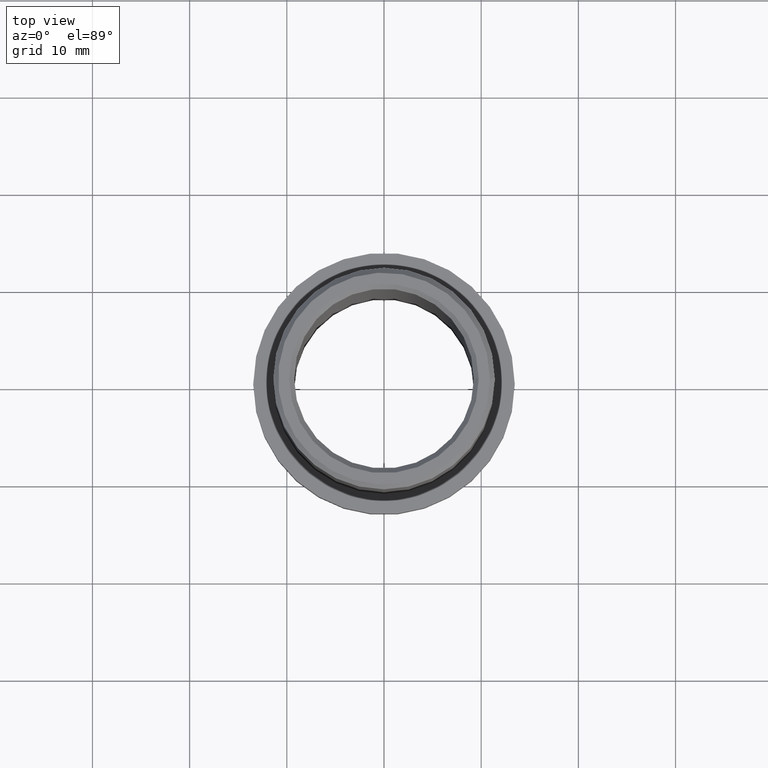
[diagram: clean part render]
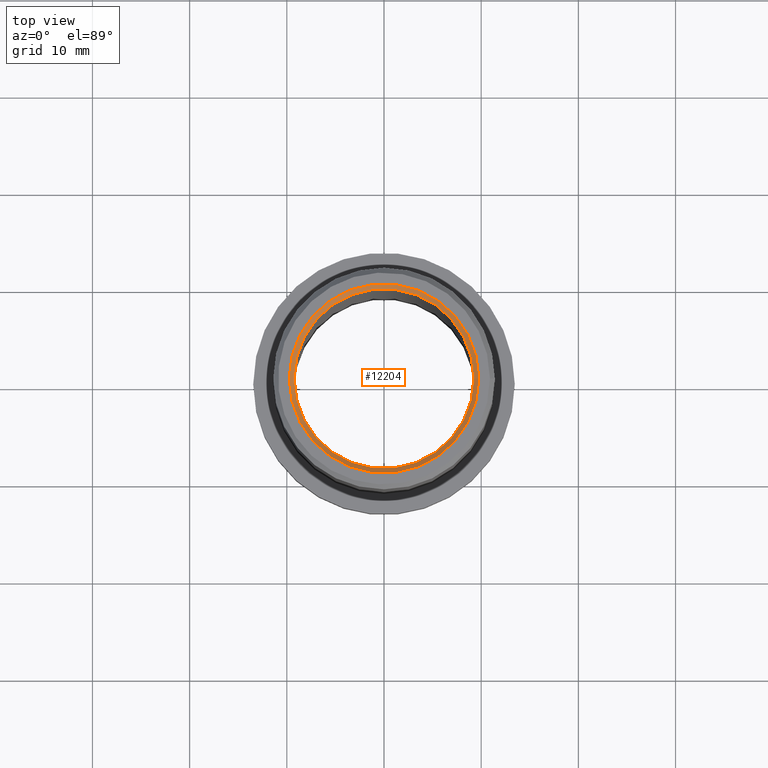
[diagram: same view with one face highlighted and labeled with its STEP entity id]
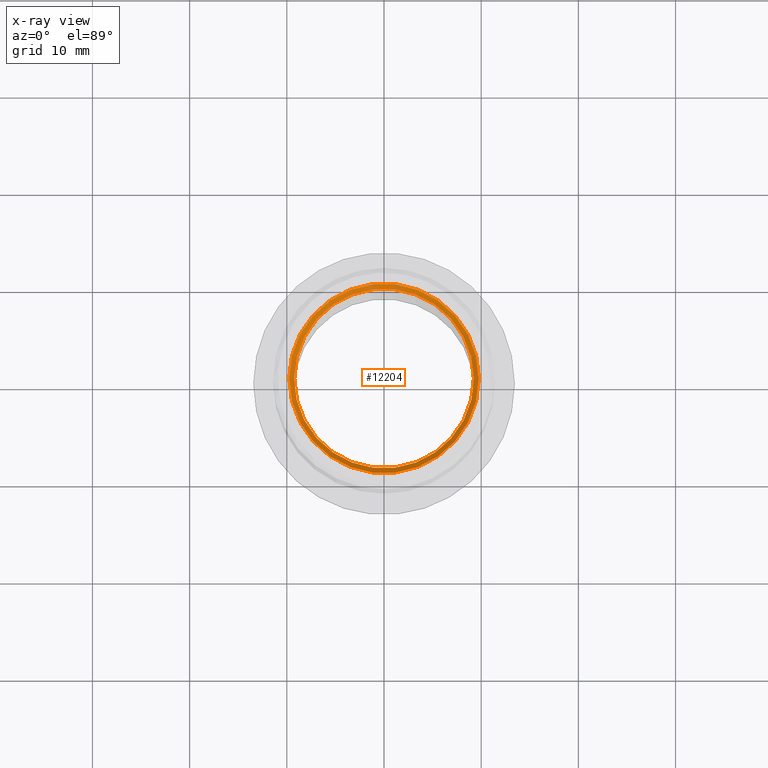
[diagram: x-ray of the same camera — body ghosted, the highlighted face saturated]
A machine part, top view. The second image highlights one B-rep face of the part: STEP entity #12204.
The next image is the same camera in x-ray: the body ghosted, the highlighted face saturated — about 0% of this face is hidden behind the body in this view.
In plain terms, the highlighted conical surface has half-angle 45 deg.
Its self-contained STEP definition (entity closure, byte-faithful):
#729 = VERTEX_POINT ( 'NONE', #8354 ) ;
#3324 = FACE_OUTER_BOUND ( 'NONE', #13231, .T. ) ;
#3604 = ORIENTED_EDGE ( 'NONE', *, *, #13982, .F. ) ;
#3755 = CIRCLE ( 'NONE', #10980, 9.250000000000001776 ) ;
#4324 = EDGE_LOOP ( 'NONE', ( #3604 ) ) ;
#5731 = CARTESIAN_POINT ( 'NONE',  ( 0.000000000000000000, 0.000000000000000000, 32.50000000000000000 ) ) ;
#7089 = ORIENTED_EDGE ( 'NONE', *, *, #8544, .F. ) ;
#7124 = CARTESIAN_POINT ( 'NONE',  ( 9.250000000000001776, 0.000000000000000000, 32.00000000000000000 ) ) ;
#7633 = VERTEX_POINT ( 'NONE', #7124 ) ;
#8000 = CARTESIAN_POINT ( 'NONE',  ( 0.000000000000000000, 0.000000000000000000, 32.00000000000000000 ) ) ;
#8354 = CARTESIAN_POINT ( 'NONE',  ( 9.750000000000015987, 0.000000000000000000, 32.50000000000000000 ) ) ;
#8544 = EDGE_CURVE ( 'NONE', #729, #729, #19967, .T. ) ;
#8802 = AXIS2_PLACEMENT_3D ( 'NONE', #8000, #9649, #14155 ) ;
#9649 = DIRECTION ( 'NONE',  ( 0.000000000000000000, 0.000000000000000000, 1.000000000000000000 ) ) ;
#10980 = AXIS2_PLACEMENT_3D ( 'NONE', #15189, #15120, #16677 ) ;
#11926 = DIRECTION ( 'NONE',  ( -0.000000000000000000, -0.000000000000000000, -1.000000000000000000 ) ) ;
#11986 = CONICAL_SURFACE ( 'NONE', #8802, 9.250000000000001776, 0.7853981633974621568 ) ;
#12040 = FACE_BOUND ( 'NONE', #4324, .T. ) ;
#12204 = ADVANCED_FACE ( 'NONE', ( #3324, #12040 ), #11986, .F. ) ;
#13231 = EDGE_LOOP ( 'NONE', ( #7089 ) ) ;
#13290 = AXIS2_PLACEMENT_3D ( 'NONE', #5731, #11926, #19982 ) ;
#13982 = EDGE_CURVE ( 'NONE', #7633, #7633, #3755, .T. ) ;
#14155 = DIRECTION ( 'NONE',  ( 1.000000000000000000, 0.000000000000000000, 0.000000000000000000 ) ) ;
#15120 = DIRECTION ( 'NONE',  ( 0.000000000000000000, 0.000000000000000000, 1.000000000000000000 ) ) ;
#15189 = CARTESIAN_POINT ( 'NONE',  ( 0.000000000000000000, 0.000000000000000000, 32.00000000000000000 ) ) ;
#16677 = DIRECTION ( 'NONE',  ( 1.000000000000000000, 0.000000000000000000, 0.000000000000000000 ) ) ;
#19967 = CIRCLE ( 'NONE', #13290, 9.750000000000015987 ) ;
#19982 = DIRECTION ( 'NONE',  ( 1.000000000000000000, 0.000000000000000000, 0.000000000000000000 ) ) ;